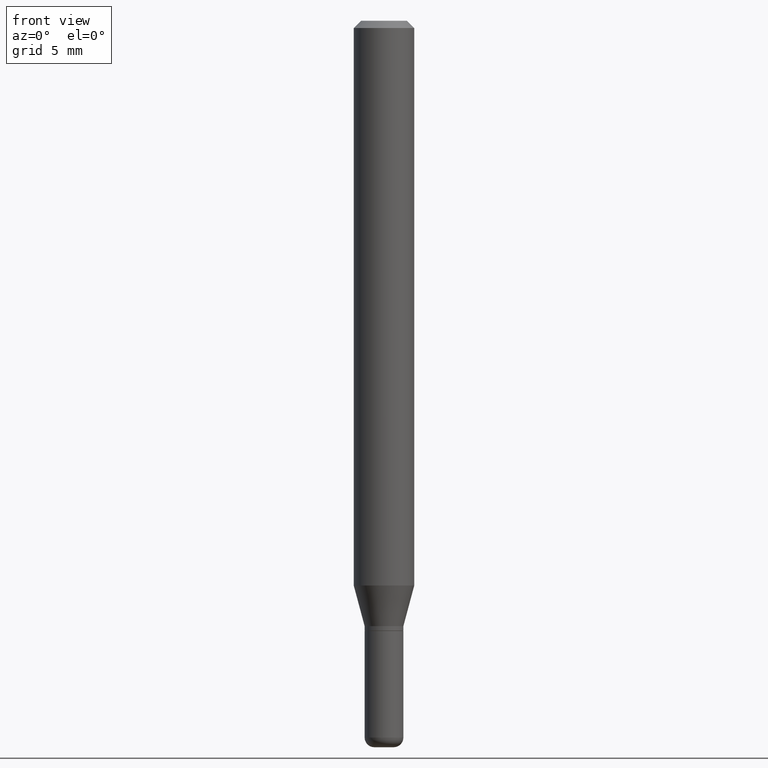
[diagram: clean part render]
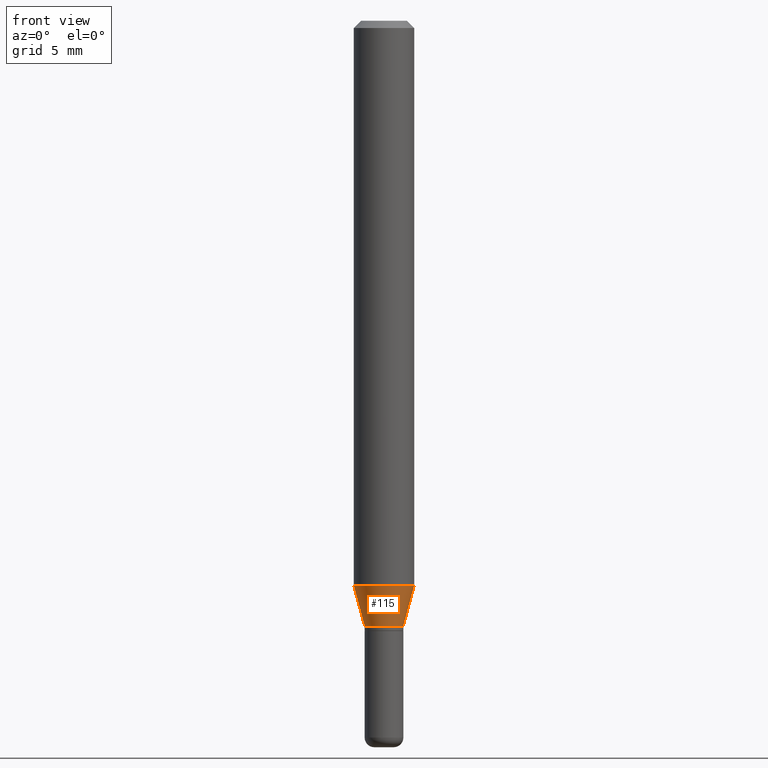
[diagram: same view with one face highlighted and labeled with its STEP entity id]
A machine part, front view. The second image highlights one B-rep face of the part: STEP entity #115.
In plain terms, the highlighted conical surface has half-angle 15 deg.
Its self-contained STEP definition (entity closure, byte-faithful):
#11 = DIRECTION ( 'NONE',  ( 1.000000000000000000, -6.982962677686262766E-15, 0.000000000000000000 ) ) ;
#18 = VECTOR ( 'NONE', #389, 39.37007874015748854 ) ;
#38 = EDGE_CURVE ( 'NONE', #416, #302, #231, .T. ) ;
#40 = AXIS2_PLACEMENT_3D ( 'NONE', #380, #83, #166 ) ;
#44 = CARTESIAN_POINT ( 'NONE',  ( 2.851487196488747125E-29, -4.071167994173504722E-15, -1.166028856829700366 ) ) ;
#83 = DIRECTION ( 'NONE',  ( -2.445468806185136597E-29, 3.491481338843145583E-15, 1.000000000000000000 ) ) ;
#101 = EDGE_CURVE ( 'NONE', #342, #109, #241, .T. ) ;
#106 = CIRCLE ( 'NONE', #514, 0.06250000000000000000 ) ;
#109 = VERTEX_POINT ( 'NONE', #405 ) ;
#115 = ADVANCED_FACE ( 'NONE', ( #243 ), #289, .T. ) ;
#121 = DIRECTION ( 'NONE',  ( 0.2588190451025207950, 1.565188264969625912E-15, 0.9659258262890682012 ) ) ;
#129 = CARTESIAN_POINT ( 'NONE',  ( -0.04000000000000000083, -4.080134579249892145E-15, -1.250000000000000000 ) ) ;
#134 = ORIENTED_EDGE ( 'NONE', *, *, #409, .F. ) ;
#135 = VECTOR ( 'NONE', #121, 39.37007874015748854 ) ;
#137 = AXIS2_PLACEMENT_3D ( 'NONE', #321, #510, #234 ) ;
#155 = ORIENTED_EDGE ( 'NONE', *, *, #431, .T. ) ;
#166 = DIRECTION ( 'NONE',  ( 1.000000000000000000, -6.982962677686271444E-15, 0.000000000000000000 ) ) ;
#171 = ORIENTED_EDGE ( 'NONE', *, *, #101, .F. ) ;
#220 = CARTESIAN_POINT ( 'NONE',  ( -0.04000000000000000083, -3.853606681786667125E-15, -1.250000000000000000 ) ) ;
#222 = DIRECTION ( 'NONE',  ( -2.445468806185136597E-29, 3.491481338843145583E-15, 1.000000000000000000 ) ) ;
#231 = LINE ( 'NONE', #385, #135 ) ;
#234 = DIRECTION ( 'NONE',  ( 1.000000000000000000, -6.982962677686271444E-15, 0.000000000000000000 ) ) ;
#241 = LINE ( 'NONE', #129, #18 ) ;
#243 = FACE_OUTER_BOUND ( 'NONE', #493, .T. ) ;
#289 = CONICAL_SURFACE ( 'NONE', #137, 0.04000000000000000083, 0.2617993877991495189 ) ;
#292 = CARTESIAN_POINT ( 'NONE',  ( 0.04000000000000000083, -4.643670180661383298E-15, -1.250000000000000000 ) ) ;
#302 = VERTEX_POINT ( 'NONE', #435 ) ;
#315 = ORIENTED_EDGE ( 'NONE', *, *, #38, .T. ) ;
#321 = CARTESIAN_POINT ( 'NONE',  ( 3.056836007731421306E-29, -4.364351673553932471E-15, -1.250000000000000000 ) ) ;
#342 = VERTEX_POINT ( 'NONE', #220 ) ;
#380 = CARTESIAN_POINT ( 'NONE',  ( 3.056836007731421306E-29, -4.364351673553932471E-15, -1.250000000000000000 ) ) ;
#385 = CARTESIAN_POINT ( 'NONE',  ( 0.04000000000000000083, -4.643670180661383298E-15, -1.250000000000000000 ) ) ;
#389 = DIRECTION ( 'NONE',  ( -0.2588190451025207950, 5.211531920934546309E-15, 0.9659258262890682012 ) ) ;
#405 = CARTESIAN_POINT ( 'NONE',  ( -0.06250000000000000000, -3.627078784323442106E-15, -1.166028856829700366 ) ) ;
#407 = CIRCLE ( 'NONE', #40, 0.04000000000000000083 ) ;
#409 = EDGE_CURVE ( 'NONE', #109, #302, #106, .T. ) ;
#416 = VERTEX_POINT ( 'NONE', #292 ) ;
#431 = EDGE_CURVE ( 'NONE', #342, #416, #407, .T. ) ;
#435 = CARTESIAN_POINT ( 'NONE',  ( 0.06250000000000000000, -4.507603161528897181E-15, -1.166028856829700366 ) ) ;
#493 = EDGE_LOOP ( 'NONE', ( #171, #155, #315, #134 ) ) ;
#510 = DIRECTION ( 'NONE',  ( -2.445468806185136597E-29, 3.491481338843145583E-15, 1.000000000000000000 ) ) ;
#514 = AXIS2_PLACEMENT_3D ( 'NONE', #44, #222, #11 ) ;